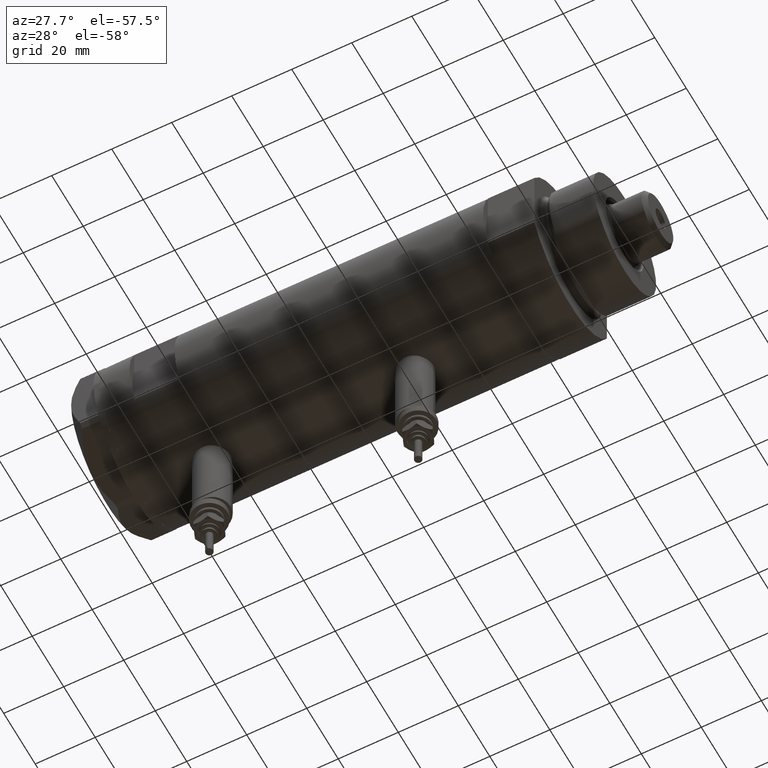
[diagram: clean part render]
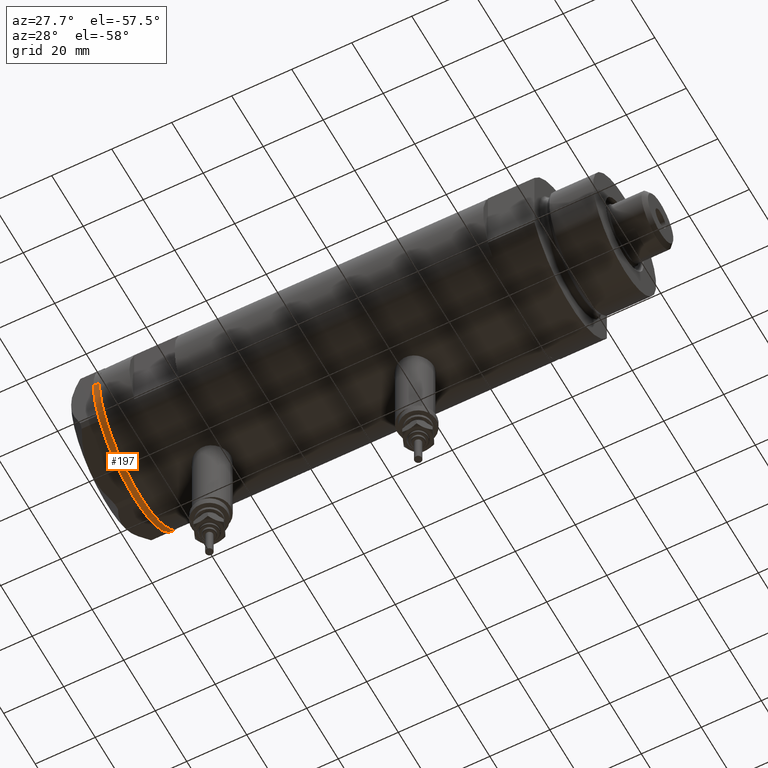
[diagram: same view with one face highlighted and labeled with its STEP entity id]
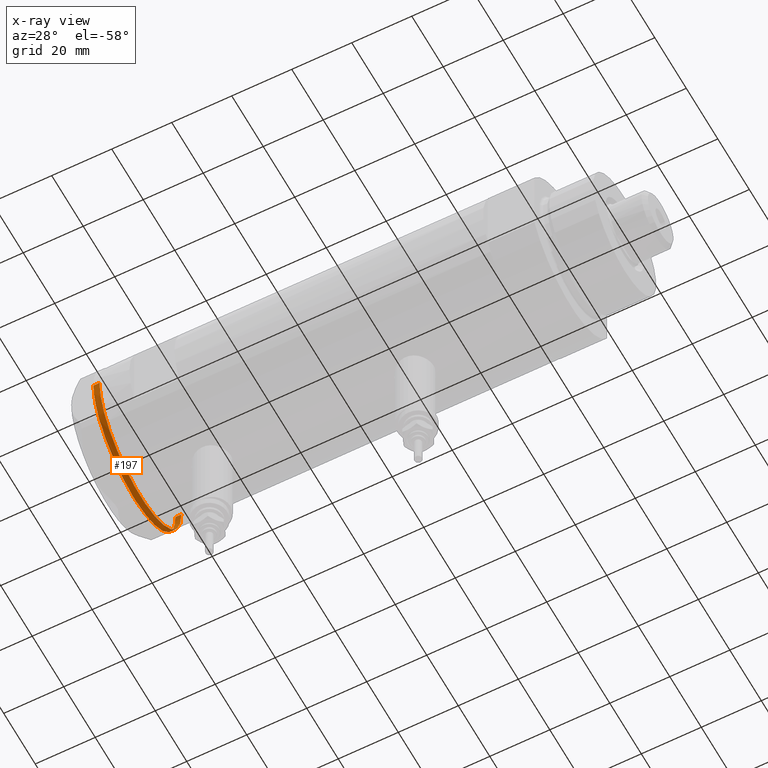
[diagram: x-ray of the same camera — body ghosted, the highlighted face saturated]
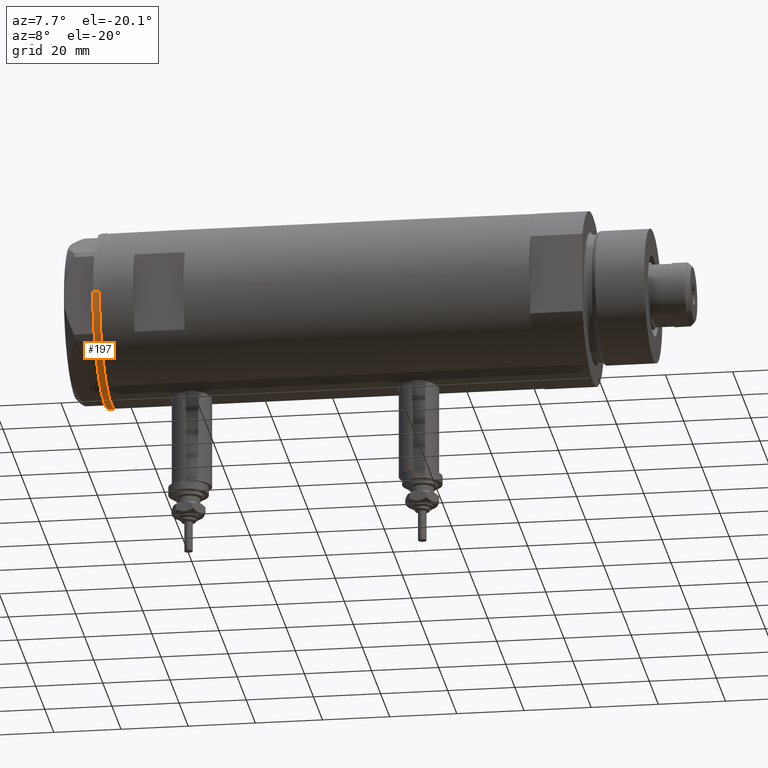
[diagram: same view with one face highlighted and labeled with its STEP entity id]
A machine part, auxiliary view. The second image highlights one B-rep face of the part: STEP entity #197.
The next image is the same camera in x-ray: the body ghosted, the highlighted face saturated — about 2% of this face is hidden behind the body in this view.
A second angle (auxiliary view) of the same face is appended — the face is thin or edge-on in the first view.
In plain terms, the highlighted cylindrical surface (partial cylindrical patch) has radius 26 mm, axis along (-1, -0, 0).
Its self-contained STEP definition (entity closure, byte-faithful):
#4 = CIRCLE ( 'NONE', #2047, 26.00000000000000355 ) ;
#197 = ADVANCED_FACE ( 'NONE', ( #2016 ), #5909, .T. ) ;
#253 = EDGE_CURVE ( 'NONE', #4620, #4348, #3647, .T. ) ;
#321 = ORIENTED_EDGE ( 'NONE', *, *, #1861, .T. ) ;
#368 = DIRECTION ( 'NONE',  ( 0.000000000000000000, 0.000000000000000000, -1.000000000000000000 ) ) ;
#378 = CARTESIAN_POINT ( 'NONE',  ( -22.99999999999999289, 12.12435565298215856, 0.000000000000000000 ) ) ;
#381 = ORIENTED_EDGE ( 'NONE', *, *, #4896, .T. ) ;
#407 = CARTESIAN_POINT ( 'NONE',  ( 26.00000000000000355, 0.000000000000000000, -2.000000000000000000 ) ) ;
#408 = DIRECTION ( 'NONE',  ( 0.000000000000000000, 0.000000000000000000, -1.000000000000000000 ) ) ;
#421 = CARTESIAN_POINT ( 'NONE',  ( 0.9999999999999297229, 25.98076211353316722, 0.000000000000000000 ) ) ;
#434 = DIRECTION ( 'NONE',  ( -1.000000000000000000, 0.000000000000000000, 0.000000000000000000 ) ) ;
#457 = ORIENTED_EDGE ( 'NONE', *, *, #4540, .T. ) ;
#461 = DIRECTION ( 'NONE',  ( 0.000000000000000000, 0.000000000000000000, -1.000000000000000000 ) ) ;
#700 = CIRCLE ( 'NONE', #4799, 26.00000000000000355 ) ;
#757 = ORIENTED_EDGE ( 'NONE', *, *, #4129, .T. ) ;
#783 = AXIS2_PLACEMENT_3D ( 'NONE', #3951, #1020, #985 ) ;
#892 = CIRCLE ( 'NONE', #4898, 26.00000000000000355 ) ;
#912 = LINE ( 'NONE', #1395, #2431 ) ;
#964 = CARTESIAN_POINT ( 'NONE',  ( 0.1044411259763403238, 26.00062917530480888, 0.000000000000000000 ) ) ;
#965 = ORIENTED_EDGE ( 'NONE', *, *, #253, .T. ) ;
#985 = DIRECTION ( 'NONE',  ( -1.000000000000000000, 0.000000000000000000, 0.000000000000000000 ) ) ;
#1020 = DIRECTION ( 'NONE',  ( 0.000000000000000000, 0.000000000000000000, -1.000000000000000000 ) ) ;
#1032 = ORIENTED_EDGE ( 'NONE', *, *, #4080, .T. ) ;
#1053 = DIRECTION ( 'NONE',  ( -0.000000000000000000, -0.000000000000000000, 1.000000000000000000 ) ) ;
#1141 = DIRECTION ( 'NONE',  ( 0.000000000000000000, 0.000000000000000000, -1.000000000000000000 ) ) ;
#1194 = VERTEX_POINT ( 'NONE', #6063 ) ;
#1202 = CARTESIAN_POINT ( 'NONE',  ( 0.000000000000000000, 0.000000000000000000, 0.000000000000000000 ) ) ;
#1267 = LINE ( 'NONE', #6193, #4681 ) ;
#1300 = DIRECTION ( 'NONE',  ( -0.000000000000000000, -0.000000000000000000, 1.000000000000000000 ) ) ;
#1334 = CARTESIAN_POINT ( 'NONE',  ( -22.46498481720481877, 13.09076325594744006, 0.000000000000000000 ) ) ;
#1345 = VERTEX_POINT ( 'NONE', #5843 ) ;
#1389 = DIRECTION ( 'NONE',  ( -1.000000000000000000, 0.000000000000000000, 0.000000000000000000 ) ) ;
#1395 = CARTESIAN_POINT ( 'NONE',  ( -26.00000000000000355, 3.184081677783118585E-15, -2.000000000000000000 ) ) ;
#1460 = CARTESIAN_POINT ( 'NONE',  ( -26.00000000000000355, 3.184081677783118585E-15, -2.000000000000000000 ) ) ;
#1462 = VERTEX_POINT ( 'NONE', #5282 ) ;
#1533 = CARTESIAN_POINT ( 'NONE',  ( 0.000000000000000000, 0.000000000000000000, -2.000000000000000000 ) ) ;
#1701 = ORIENTED_EDGE ( 'NONE', *, *, #4879, .T. ) ;
#1704 = CIRCLE ( 'NONE', #783, 26.00000000000000355 ) ;
#1753 = CARTESIAN_POINT ( 'NONE',  ( 0.000000000000000000, 0.000000000000000000, 0.000000000000000000 ) ) ;
#1755 = VERTEX_POINT ( 'NONE', #4149 ) ;
#1853 = CARTESIAN_POINT ( 'NONE',  ( 22.67167229899213510, 12.72773645103923990, 0.000000000000000000 ) ) ;
#1856 = CARTESIAN_POINT ( 'NONE',  ( 0.000000000000000000, 0.000000000000000000, -2.000000000000000000 ) ) ;
#1861 = EDGE_CURVE ( 'NONE', #1462, #4003, #4374, .T. ) ;
#1931 = CARTESIAN_POINT ( 'NONE',  ( 0.3132930502238189252, 25.99811238272274139, 0.000000000000000000 ) ) ;
#1944 = B_SPLINE_CURVE_WITH_KNOTS ( 'NONE', 3,
 ( #6187, #3774, #1334, #3294 ),
 .UNSPECIFIED., .F., .F.,
 ( 4, 4 ),
 ( 0.000000000000000000, 1.000000000000000000 ),
 .UNSPECIFIED. ) ;
#1997 = VERTEX_POINT ( 'NONE', #5464 ) ;
#2016 = FACE_OUTER_BOUND ( 'NONE', #6326, .T. ) ;
#2029 = AXIS2_PLACEMENT_3D ( 'NONE', #1856, #4245, #3249 ) ;
#2047 = AXIS2_PLACEMENT_3D ( 'NONE', #4429, #4617, #3626 ) ;
#2101 = EDGE_CURVE ( 'NONE', #4156, #4105, #3357, .T. ) ;
#2146 = DIRECTION ( 'NONE',  ( -1.000000000000000000, 0.000000000000000000, 0.000000000000000000 ) ) ;
#2431 = VECTOR ( 'NONE', #4762, 1000.000000000000000 ) ;
#2448 = CIRCLE ( 'NONE', #4689, 26.00000000000000355 ) ;
#2449 = CARTESIAN_POINT ( 'NONE',  ( 0.000000000000000000, 0.000000000000000000, 0.000000000000000000 ) ) ;
#2490 = CARTESIAN_POINT ( 'NONE',  ( -0.1044411259765276462, 26.00062917530480888, 0.000000000000000000 ) ) ;
#2560 = ORIENTED_EDGE ( 'NONE', *, *, #6142, .T. ) ;
#2567 = ORIENTED_EDGE ( 'NONE', *, *, #5515, .T. ) ;
#2820 = ORIENTED_EDGE ( 'NONE', *, *, #3512, .T. ) ;
#2856 = ORIENTED_EDGE ( 'NONE', *, *, #4364, .T. ) ;
#2915 = CARTESIAN_POINT ( 'NONE',  ( -0.9999999999999089617, 25.98076211353316367, 0.000000000000000000 ) ) ;
#2925 = CARTESIAN_POINT ( 'NONE',  ( 22.35837924876908289, 13.27037593168378216, 0.000000000000000000 ) ) ;
#3100 = CARTESIAN_POINT ( 'NONE',  ( 21.99999999999987210, 13.85640646055121827, 0.000000000000000000 ) ) ;
#3130 = VERTEX_POINT ( 'NONE', #2915 ) ;
#3155 = B_SPLINE_CURVE_WITH_KNOTS ( 'NONE', 3,
 ( #6313, #2490, #964, #1931 ),
 .UNSPECIFIED., .F., .F.,
 ( 4, 4 ),
 ( 0.000000000000000000, 1.000000000000000000 ),
 .UNSPECIFIED. ) ;
#3177 = CARTESIAN_POINT ( 'NONE',  ( -22.67167229899207115, 12.72773645103935003, 0.000000000000000000 ) ) ;
#3225 = DIRECTION ( 'NONE',  ( -1.000000000000000000, 0.000000000000000000, 0.000000000000000000 ) ) ;
#3249 = DIRECTION ( 'NONE',  ( -1.000000000000000000, 0.000000000000000000, 0.000000000000000000 ) ) ;
#3294 = CARTESIAN_POINT ( 'NONE',  ( -22.35837924876937066, 13.27037593168329543, 0.000000000000000000 ) ) ;
#3357 = CIRCLE ( 'NONE', #2029, 26.00000000000000355 ) ;
#3369 = EDGE_CURVE ( 'NONE', #3899, #3782, #4886, .T. ) ;
#3376 = AXIS2_PLACEMENT_3D ( 'NONE', #1202, #1141, #2146 ) ;
#3411 = ORIENTED_EDGE ( 'NONE', *, *, #3447, .T. ) ;
#3447 = EDGE_CURVE ( 'NONE', #3130, #1194, #1704, .T. ) ;
#3469 = VERTEX_POINT ( 'NONE', #421 ) ;
#3512 = EDGE_CURVE ( 'NONE', #4348, #1462, #5912, .T. ) ;
#3585 = CARTESIAN_POINT ( 'NONE',  ( 0.000000000000000000, 0.000000000000000000, 0.000000000000000000 ) ) ;
#3626 = DIRECTION ( 'NONE',  ( -1.000000000000000000, 0.000000000000000000, 0.000000000000000000 ) ) ;
#3637 = DIRECTION ( 'NONE',  ( 0.000000000000000000, 0.000000000000000000, -1.000000000000000000 ) ) ;
#3647 = CIRCLE ( 'NONE', #4259, 26.00000000000000355 ) ;
#3705 = EDGE_CURVE ( 'NONE', #4105, #1997, #1267, .T. ) ;
#3711 = CARTESIAN_POINT ( 'NONE',  ( -22.00000000000008171, 13.85640646055089498, 0.000000000000000000 ) ) ;
#3759 = DIRECTION ( 'NONE',  ( -1.000000000000000000, 0.000000000000000000, 0.000000000000000000 ) ) ;
#3773 = CIRCLE ( 'NONE', #6322, 26.00000000000000355 ) ;
#3774 = CARTESIAN_POINT ( 'NONE',  ( -22.56942594318084616, 12.90986591935725158, 0.000000000000000000 ) ) ;
#3782 = VERTEX_POINT ( 'NONE', #3177 ) ;
#3798 = EDGE_CURVE ( 'NONE', #4156, #1345, #912, .T. ) ;
#3899 = VERTEX_POINT ( 'NONE', #378 ) ;
#3951 = CARTESIAN_POINT ( 'NONE',  ( 0.000000000000000000, 0.000000000000000000, 0.000000000000000000 ) ) ;
#3952 = DIRECTION ( 'NONE',  ( -1.000000000000000000, 0.000000000000000000, 0.000000000000000000 ) ) ;
#4003 = VERTEX_POINT ( 'NONE', #5004 ) ;
#4011 = ORIENTED_EDGE ( 'NONE', *, *, #3369, .T. ) ;
#4080 = EDGE_CURVE ( 'NONE', #3782, #1755, #1944, .T. ) ;
#4105 = VERTEX_POINT ( 'NONE', #407 ) ;
#4129 = EDGE_CURVE ( 'NONE', #3469, #4620, #892, .T. ) ;
#4149 = CARTESIAN_POINT ( 'NONE',  ( -22.35837924876937066, 13.27037593168329543, 0.000000000000000000 ) ) ;
#4156 = VERTEX_POINT ( 'NONE', #1460 ) ;
#4245 = DIRECTION ( 'NONE',  ( 0.000000000000000000, 0.000000000000000000, -1.000000000000000000 ) ) ;
#4259 = AXIS2_PLACEMENT_3D ( 'NONE', #5326, #461, #5742 ) ;
#4293 = CARTESIAN_POINT ( 'NONE',  ( 0.000000000000000000, 0.000000000000000000, 0.000000000000000000 ) ) ;
#4348 = VERTEX_POINT ( 'NONE', #2925 ) ;
#4358 = CARTESIAN_POINT ( 'NONE',  ( 22.46498481720465179, 13.09076325594772960, 0.000000000000000000 ) ) ;
#4364 = EDGE_CURVE ( 'NONE', #5473, #3469, #3773, .T. ) ;
#4374 = CIRCLE ( 'NONE', #5692, 26.00000000000000355 ) ;
#4429 = CARTESIAN_POINT ( 'NONE',  ( 0.000000000000000000, 0.000000000000000000, 0.000000000000000000 ) ) ;
#4540 = EDGE_CURVE ( 'NONE', #4003, #1997, #2448, .T. ) ;
#4617 = DIRECTION ( 'NONE',  ( 0.000000000000000000, 0.000000000000000000, -1.000000000000000000 ) ) ;
#4620 = VERTEX_POINT ( 'NONE', #3100 ) ;
#4630 = CARTESIAN_POINT ( 'NONE',  ( 0.3132930502238189252, 25.99811238272274139, 0.000000000000000000 ) ) ;
#4661 = AXIS2_PLACEMENT_3D ( 'NONE', #1533, #1053, #5440 ) ;
#4681 = VECTOR ( 'NONE', #1300, 1000.000000000000000 ) ;
#4689 = AXIS2_PLACEMENT_3D ( 'NONE', #4293, #408, #1389 ) ;
#4725 = VERTEX_POINT ( 'NONE', #3711 ) ;
#4762 = DIRECTION ( 'NONE',  ( -0.000000000000000000, -0.000000000000000000, 1.000000000000000000 ) ) ;
#4799 = AXIS2_PLACEMENT_3D ( 'NONE', #3585, #6054, #3952 ) ;
#4873 = CARTESIAN_POINT ( 'NONE',  ( 22.35837924876908289, 13.27037593168378216, 0.000000000000000000 ) ) ;
#4879 = EDGE_CURVE ( 'NONE', #4725, #3130, #700, .T. ) ;
#4886 = CIRCLE ( 'NONE', #5683, 26.00000000000000355 ) ;
#4896 = EDGE_CURVE ( 'NONE', #1755, #4725, #5105, .T. ) ;
#4898 = AXIS2_PLACEMENT_3D ( 'NONE', #5770, #368, #434 ) ;
#5004 = CARTESIAN_POINT ( 'NONE',  ( 22.99999999999982592, 12.12435565298247653, 0.000000000000000000 ) ) ;
#5105 = CIRCLE ( 'NONE', #3376, 26.00000000000000355 ) ;
#5255 = DIRECTION ( 'NONE',  ( 0.000000000000000000, 0.000000000000000000, -1.000000000000000000 ) ) ;
#5282 = CARTESIAN_POINT ( 'NONE',  ( 22.67167229899213510, 12.72773645103923990, 0.000000000000000000 ) ) ;
#5326 = CARTESIAN_POINT ( 'NONE',  ( 0.000000000000000000, 0.000000000000000000, 0.000000000000000000 ) ) ;
#5388 = ORIENTED_EDGE ( 'NONE', *, *, #3705, .F. ) ;
#5440 = DIRECTION ( 'NONE',  ( 1.000000000000000000, 0.000000000000000000, 0.000000000000000000 ) ) ;
#5464 = CARTESIAN_POINT ( 'NONE',  ( 26.00000000000000355, 0.000000000000000000, 0.000000000000000000 ) ) ;
#5473 = VERTEX_POINT ( 'NONE', #4630 ) ;
#5515 = EDGE_CURVE ( 'NONE', #1345, #3899, #4, .T. ) ;
#5683 = AXIS2_PLACEMENT_3D ( 'NONE', #6112, #3637, #3225 ) ;
#5692 = AXIS2_PLACEMENT_3D ( 'NONE', #1753, #5845, #5777 ) ;
#5742 = DIRECTION ( 'NONE',  ( -1.000000000000000000, 0.000000000000000000, 0.000000000000000000 ) ) ;
#5770 = CARTESIAN_POINT ( 'NONE',  ( 0.000000000000000000, 0.000000000000000000, 0.000000000000000000 ) ) ;
#5777 = DIRECTION ( 'NONE',  ( -1.000000000000000000, 0.000000000000000000, 0.000000000000000000 ) ) ;
#5843 = CARTESIAN_POINT ( 'NONE',  ( -26.00000000000000355, 3.184081677783118585E-15, 0.000000000000000000 ) ) ;
#5845 = DIRECTION ( 'NONE',  ( 0.000000000000000000, 0.000000000000000000, -1.000000000000000000 ) ) ;
#5909 = CYLINDRICAL_SURFACE ( 'NONE', #4661, 26.00000000000000355 ) ;
#5912 = B_SPLINE_CURVE_WITH_KNOTS ( 'NONE', 3,
 ( #4873, #4358, #6241, #1853 ),
 .UNSPECIFIED., .F., .F.,
 ( 4, 4 ),
 ( 0.000000000000000000, 1.000000000000000000 ),
 .UNSPECIFIED. ) ;
#6054 = DIRECTION ( 'NONE',  ( 0.000000000000000000, 0.000000000000000000, -1.000000000000000000 ) ) ;
#6063 = CARTESIAN_POINT ( 'NONE',  ( -0.3132930502240048320, 25.99811238272273783, 0.000000000000000000 ) ) ;
#6112 = CARTESIAN_POINT ( 'NONE',  ( 0.000000000000000000, 0.000000000000000000, 0.000000000000000000 ) ) ;
#6142 = EDGE_CURVE ( 'NONE', #1194, #5473, #3155, .T. ) ;
#6173 = ORIENTED_EDGE ( 'NONE', *, *, #2101, .F. ) ;
#6187 = CARTESIAN_POINT ( 'NONE',  ( -22.67167229899207115, 12.72773645103935003, 0.000000000000000000 ) ) ;
#6193 = CARTESIAN_POINT ( 'NONE',  ( 26.00000000000000355, 0.000000000000000000, -2.000000000000000000 ) ) ;
#6241 = CARTESIAN_POINT ( 'NONE',  ( 22.56942594318079642, 12.90986591935734218, 0.000000000000000000 ) ) ;
#6288 = ORIENTED_EDGE ( 'NONE', *, *, #3798, .T. ) ;
#6313 = CARTESIAN_POINT ( 'NONE',  ( -0.3132930502240048320, 25.99811238272273783, 0.000000000000000000 ) ) ;
#6322 = AXIS2_PLACEMENT_3D ( 'NONE', #2449, #5255, #3759 ) ;
#6326 = EDGE_LOOP ( 'NONE', ( #6173, #6288, #2567, #4011, #1032, #381, #1701, #3411, #2560, #2856, #757, #965, #2820, #321, #457, #5388 ) ) ;